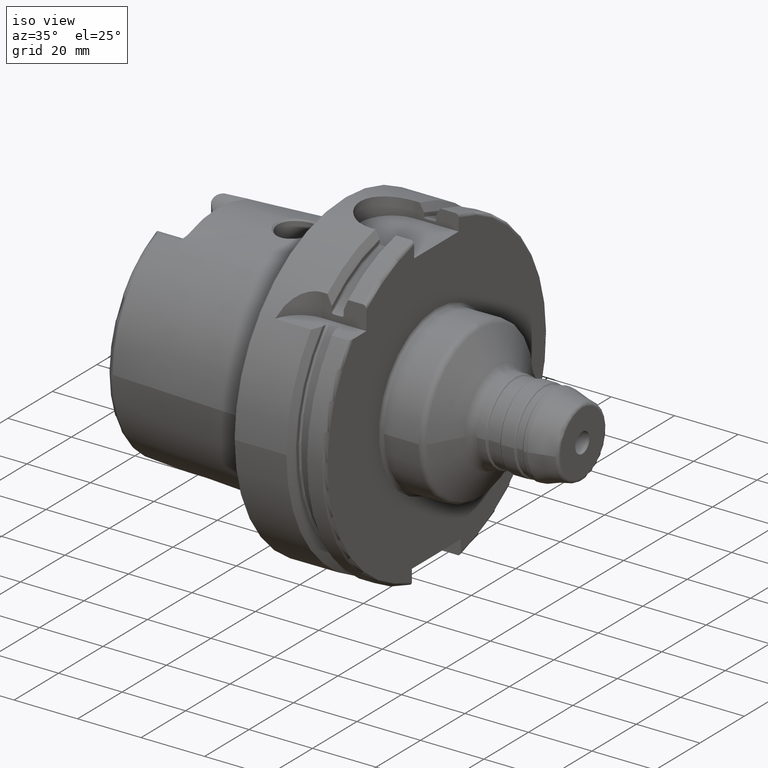
[diagram: clean part render]
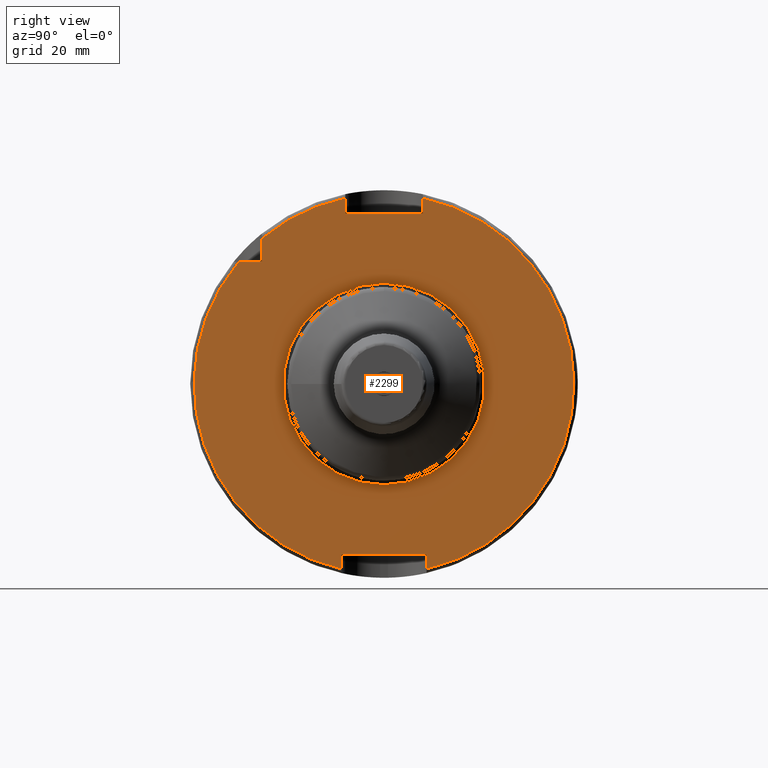
[diagram: tour spotlight — one face highlighted and labeled with its STEP entity id]
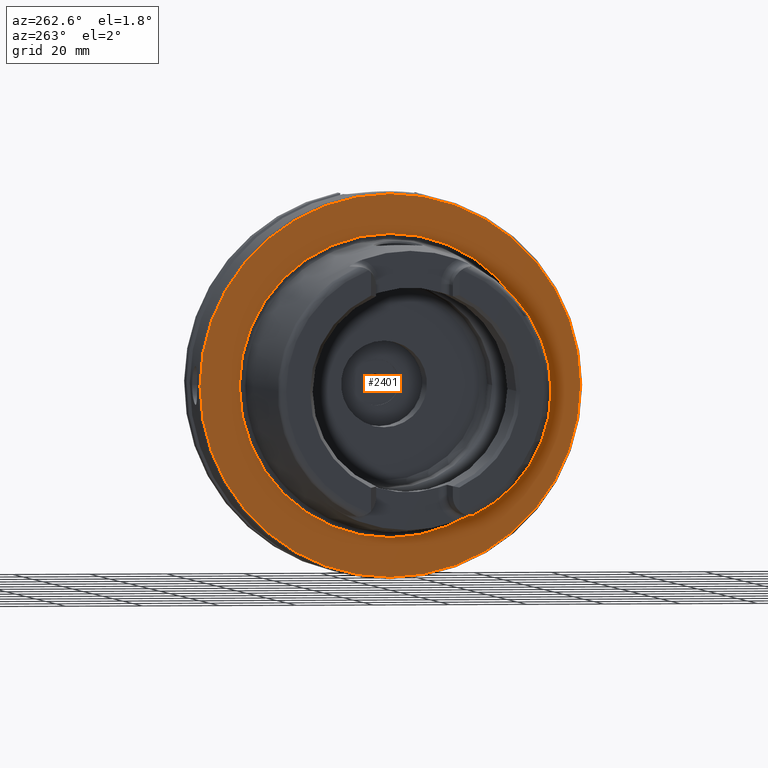
[diagram: tour spotlight — one face highlighted and labeled with its STEP entity id]
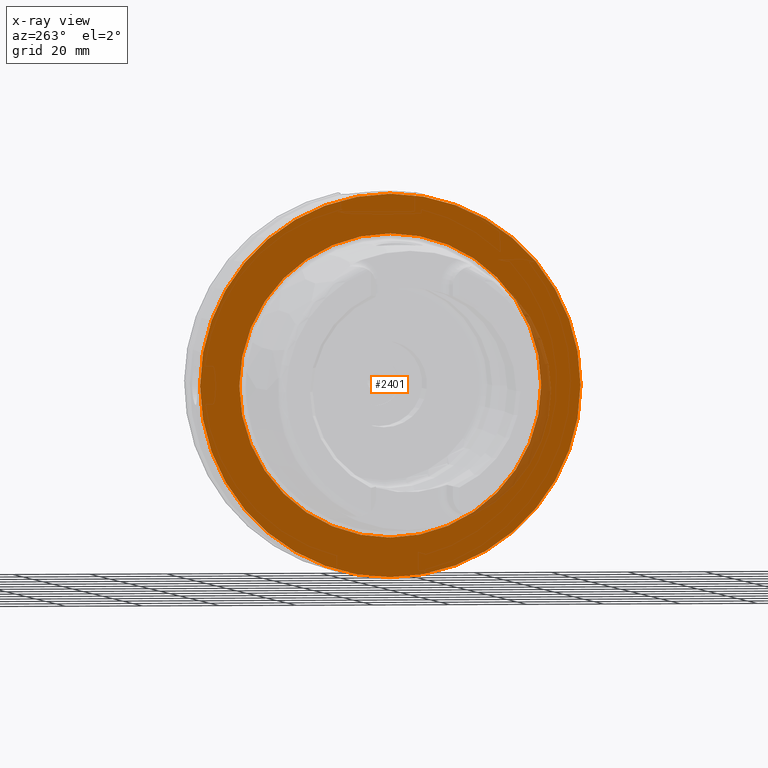
[diagram: x-ray of the same camera — body ghosted, this tour face saturated]
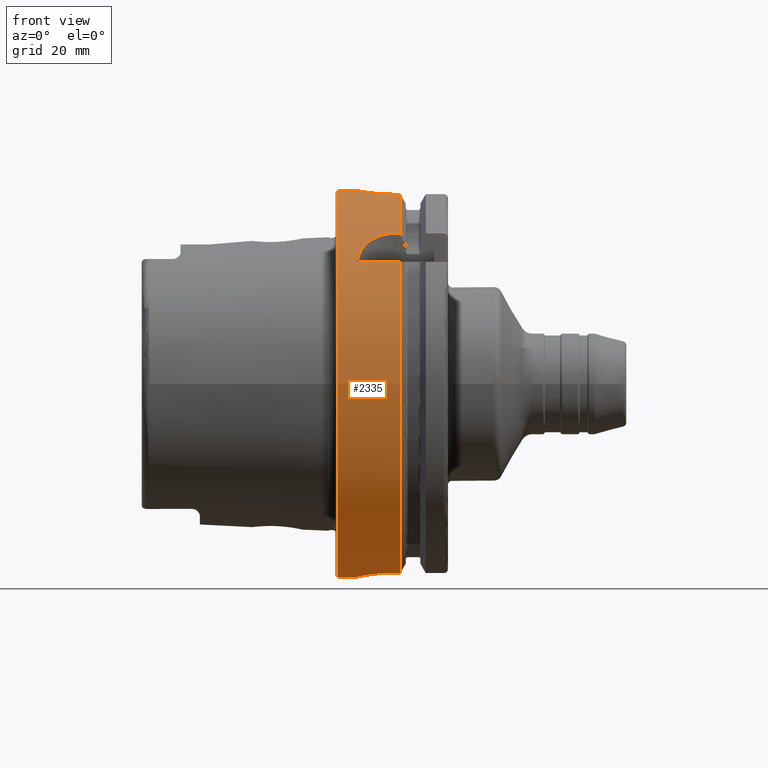
[diagram: tour spotlight — one face highlighted and labeled with its STEP entity id]
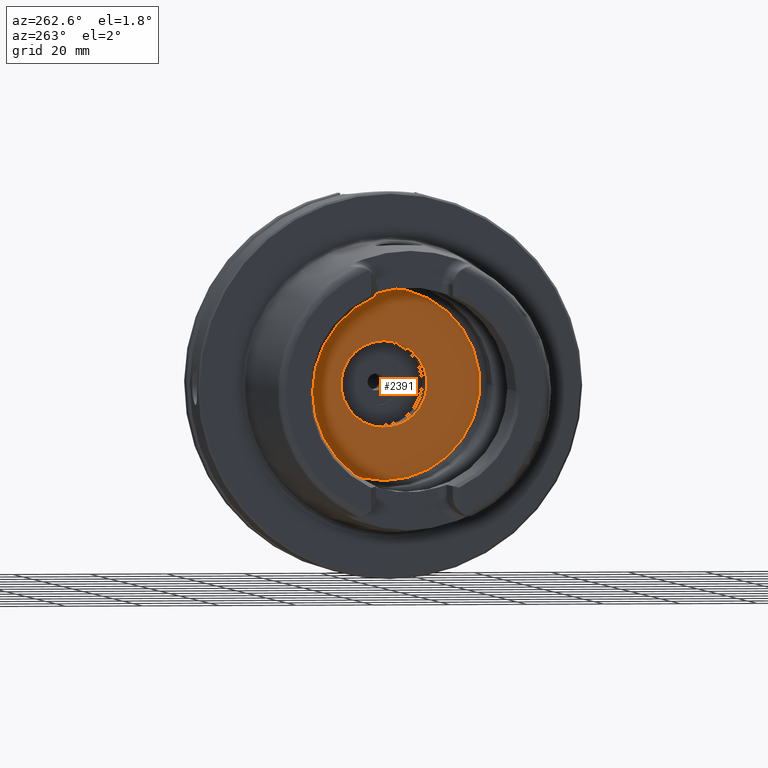
[diagram: tour spotlight — one face highlighted and labeled with its STEP entity id]
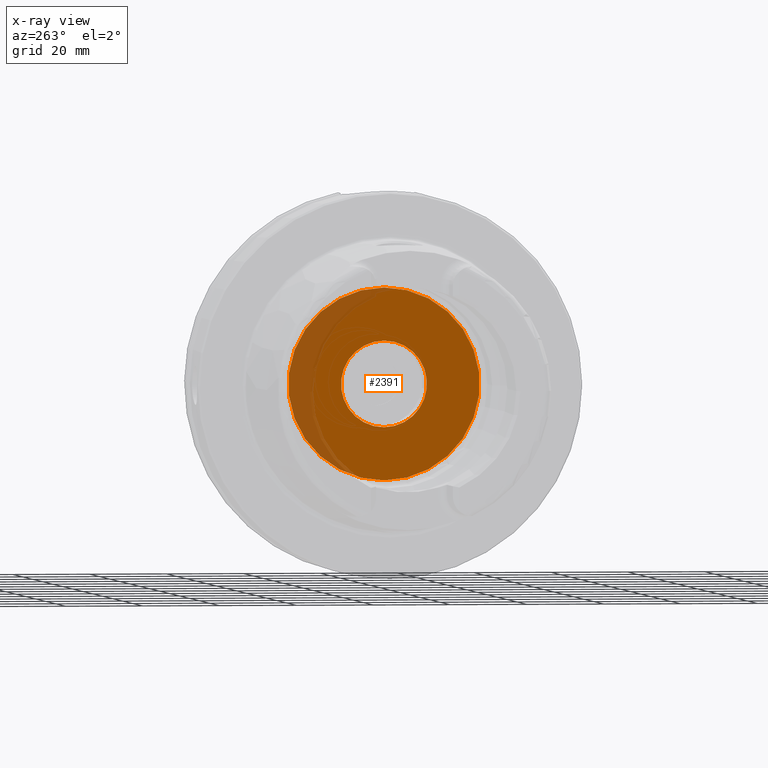
[diagram: x-ray of the same camera — body ghosted, this tour face saturated]
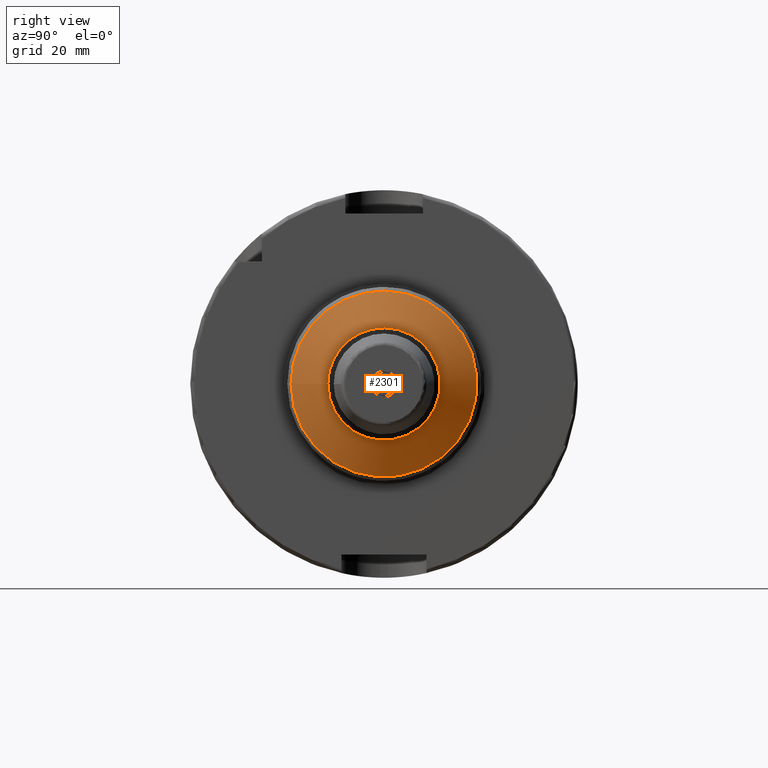
[diagram: tour spotlight — one face highlighted and labeled with its STEP entity id]
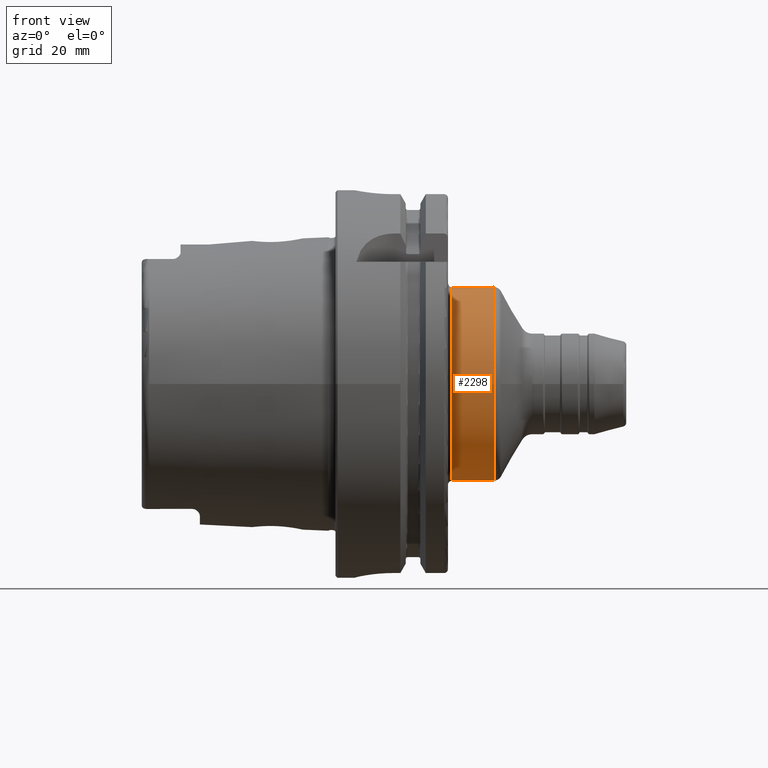
[diagram: tour spotlight — one face highlighted and labeled with its STEP entity id]
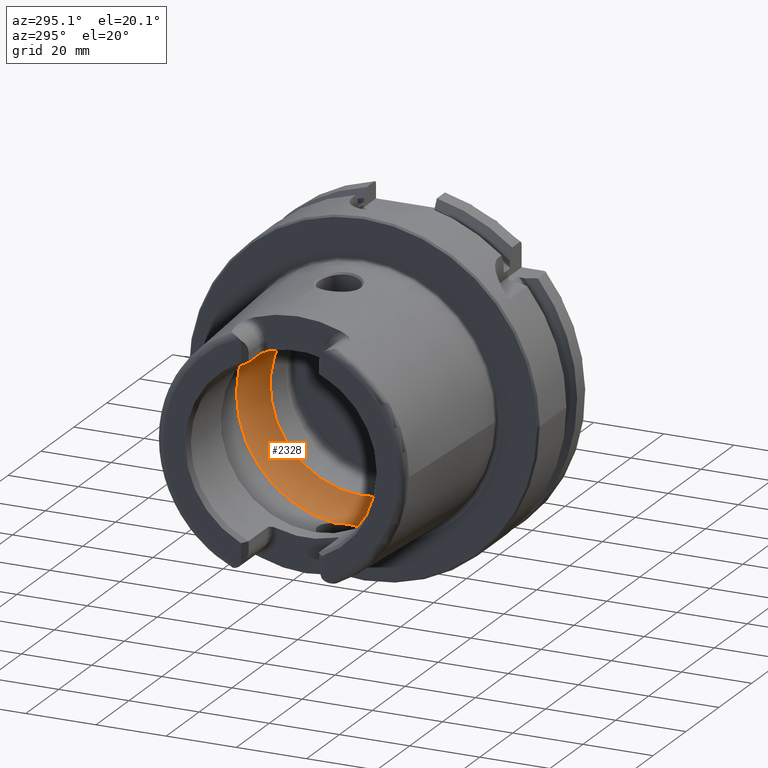
[diagram: tour spotlight — one face highlighted and labeled with its STEP entity id]
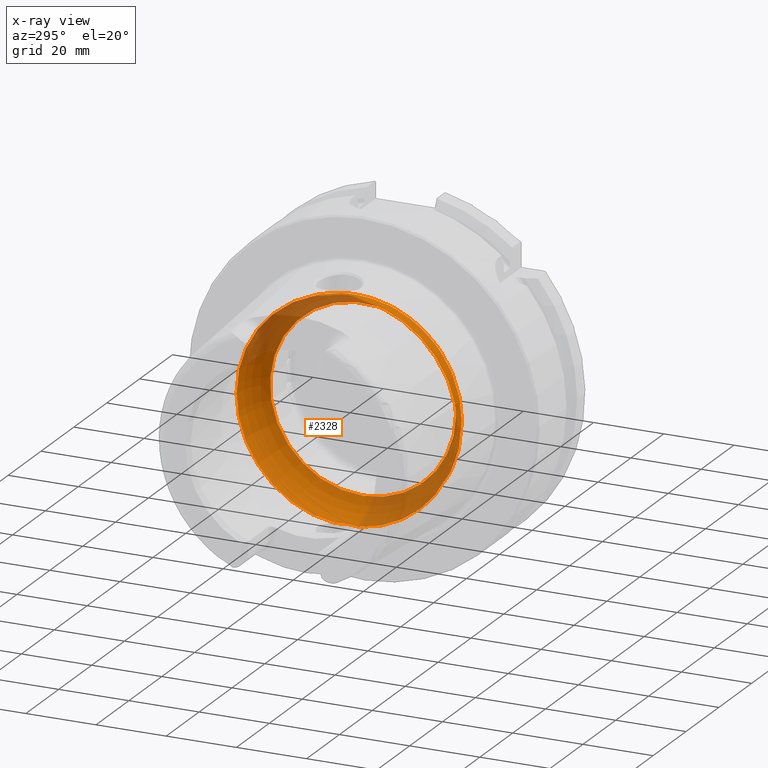
[diagram: x-ray of the same camera — body ghosted, this tour face saturated]
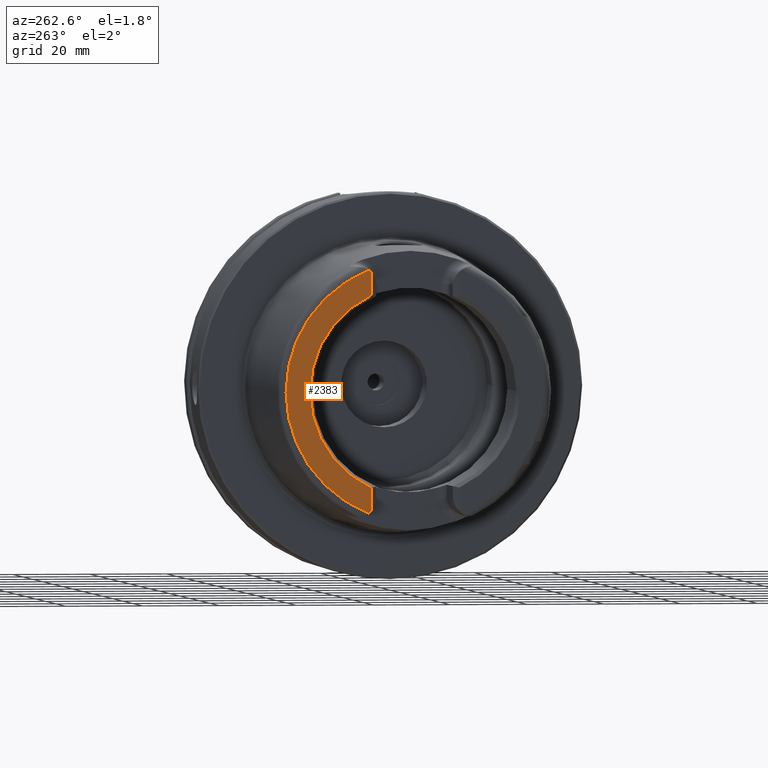
[diagram: tour spotlight — one face highlighted and labeled with its STEP entity id]
A machine part: a face-by-face anatomy tour. The part has 136 B-rep faces; the first image is the clean iso view, then the 8 largest visible faces are spotlighted one at a time (largest first), each with its STEP entity span.

Face 1 — right view, entity #2299. In plain terms, the highlighted planar face has unit normal (1, 0, 0).
Definition (entity closure, byte-faithful):
#94=FACE_BOUND('',#588,.T.);
#106=PLANE('',#2516);
#174=LINE('',#3661,#286);
#175=LINE('',#3665,#287);
#176=LINE('',#3667,#288);
#177=LINE('',#3669,#289);
#178=LINE('',#3673,#290);
#179=LINE('',#3675,#291);
#180=LINE('',#3677,#292);
#181=LINE('',#3680,#293);
#286=VECTOR('',#2935,10.);
#287=VECTOR('',#2938,10.);
#288=VECTOR('',#2939,10.);
#289=VECTOR('',#2940,10.);
#290=VECTOR('',#2943,10.);
#291=VECTOR('',#2944,10.);
#292=VECTOR('',#2945,10.);
#293=VECTOR('',#2948,10.);
#450=FACE_OUTER_BOUND('',#587,.T.);
#587=EDGE_LOOP('',(#1634,#1635,#1636,#1637,#1638,#1639,#1640,#1641,#1642,
#1643,#1644));
#588=EDGE_LOOP('',(#1645));
#765=CIRCLE('',#2511,26.);
#769=CIRCLE('',#2517,49.);
#770=CIRCLE('',#2518,49.);
#771=CIRCLE('',#2519,49.);
#936=VERTEX_POINT('',#3648);
#939=VERTEX_POINT('',#3659);
#940=VERTEX_POINT('',#3660);
#941=VERTEX_POINT('',#3662);
#942=VERTEX_POINT('',#3664);
#943=VERTEX_POINT('',#3666);
#944=VERTEX_POINT('',#3668);
#945=VERTEX_POINT('',#3670);
#946=VERTEX_POINT('',#3672);
#947=VERTEX_POINT('',#3674);
#948=VERTEX_POINT('',#3676);
#949=VERTEX_POINT('',#3678);
#1197=EDGE_CURVE('',#936,#936,#765,.T.);
#1202=EDGE_CURVE('',#939,#940,#174,.T.);
#1203=EDGE_CURVE('',#940,#941,#769,.T.);
#1204=EDGE_CURVE('',#941,#942,#175,.T.);
#1205=EDGE_CURVE('',#942,#943,#176,.T.);
#1206=EDGE_CURVE('',#943,#944,#177,.T.);
#1207=EDGE_CURVE('',#944,#945,#770,.T.);
#1208=EDGE_CURVE('',#945,#946,#178,.T.);
#1209=EDGE_CURVE('',#946,#947,#179,.T.);
#1210=EDGE_CURVE('',#947,#948,#180,.T.);
#1211=EDGE_CURVE('',#948,#949,#771,.T.);
#1212=EDGE_CURVE('',#949,#939,#181,.T.);
#1634=ORIENTED_EDGE('',*,*,#1202,.T.);
#1635=ORIENTED_EDGE('',*,*,#1203,.T.);
#1636=ORIENTED_EDGE('',*,*,#1204,.T.);
#1637=ORIENTED_EDGE('',*,*,#1205,.T.);
#1638=ORIENTED_EDGE('',*,*,#1206,.T.);
#1639=ORIENTED_EDGE('',*,*,#1207,.T.);
#1640=ORIENTED_EDGE('',*,*,#1208,.T.);
#1641=ORIENTED_EDGE('',*,*,#1209,.T.);
#1642=ORIENTED_EDGE('',*,*,#1210,.T.);
#1643=ORIENTED_EDGE('',*,*,#1211,.T.);
#1644=ORIENTED_EDGE('',*,*,#1212,.T.);
#1645=ORIENTED_EDGE('',*,*,#1197,.F.);
#2299=ADVANCED_FACE('',(#450,#94),#106,.T.);
#2511=AXIS2_PLACEMENT_3D('',#3650,#2922,#2923);
#2516=AXIS2_PLACEMENT_3D('',#3658,#2933,#2934);
#2517=AXIS2_PLACEMENT_3D('',#3663,#2936,#2937);
#2518=AXIS2_PLACEMENT_3D('',#3671,#2941,#2942);
#2519=AXIS2_PLACEMENT_3D('',#3679,#2946,#2947);
#2922=DIRECTION('center_axis',(1.,0.,0.));
#2923=DIRECTION('ref_axis',(0.,-1.,-1.22464679914735E-16));
#2933=DIRECTION('center_axis',(1.,0.,0.));
#2934=DIRECTION('ref_axis',(0.,0.,-1.));
#2935=DIRECTION('',(0.,-1.,0.));
#2936=DIRECTION('center_axis',(1.,0.,0.));
#2937=DIRECTION('ref_axis',(0.,0.,-1.));
#2938=DIRECTION('',(0.,0.,1.));
#2939=DIRECTION('',(0.,1.,0.));
#2940=DIRECTION('',(0.,0.,-1.));
#2941=DIRECTION('center_axis',(1.,0.,0.));
#2942=DIRECTION('ref_axis',(0.,0.,-1.));
#2943=DIRECTION('',(0.,0.,-1.));
#2944=DIRECTION('',(0.,-1.,0.));
#2945=DIRECTION('',(0.,0.,1.));
#2946=DIRECTION('center_axis',(1.,0.,0.));
#2947=DIRECTION('ref_axis',(0.,0.,-1.));
#2948=DIRECTION('',(0.,0.,-1.));
#3648=CARTESIAN_POINT('',(29.,-3.18408167778312E-15,-26.));
#3650=CARTESIAN_POINT('Origin',(29.,0.,0.));
#3658=CARTESIAN_POINT('Origin',(29.,0.,0.));
#3659=CARTESIAN_POINT('',(29.,-31.5,31.5));
#3660=CARTESIAN_POINT('',(29.,-37.5333185316726,31.5));
#3661=CARTESIAN_POINT('',(29.,-18.25,31.5));
#3662=CARTESIAN_POINT('',(29.,-11.,-47.7493455452533));
#3663=CARTESIAN_POINT('Origin',(29.,0.,0.));
#3664=CARTESIAN_POINT('',(29.,-11.,-44.));
#3665=CARTESIAN_POINT('',(29.,-11.,-22.));
#3666=CARTESIAN_POINT('',(29.,11.,-44.));
#3667=CARTESIAN_POINT('',(29.,-5.55111512312578E-16,-44.));
#3668=CARTESIAN_POINT('',(29.,11.,-47.7493455452533));
#3669=CARTESIAN_POINT('',(29.,11.,-22.));
#3670=CARTESIAN_POINT('',(29.,10.,47.9687398208458));
#3671=CARTESIAN_POINT('Origin',(29.,0.,0.));
#3672=CARTESIAN_POINT('',(29.,10.,44.));
#3673=CARTESIAN_POINT('',(29.,10.,22.));
#3674=CARTESIAN_POINT('',(29.,-10.,44.));
#3675=CARTESIAN_POINT('',(29.,0.,44.));
#3676=CARTESIAN_POINT('',(29.,-10.,47.9687398208458));
#3677=CARTESIAN_POINT('',(29.,-10.,22.));
#3678=CARTESIAN_POINT('',(29.,-31.5,37.5333185316726));
#3679=CARTESIAN_POINT('Origin',(29.,0.,0.));
#3680=CARTESIAN_POINT('',(29.,-31.5,15.75));

Face 2 — auxiliary view, entity #2401. An x-ray twin of the same camera follows (body ghosted, this face saturated) — the face is partly hidden behind the body. In plain terms, the highlighted planar face has unit normal (-1, 0, 0).
Definition (entity closure, byte-faithful):
#104=FACE_BOUND('',#700,.T.);
#141=PLANE('',#2739);
#552=FACE_OUTER_BOUND('',#699,.T.);
#699=EDGE_LOOP('',(#2196));
#700=EDGE_LOOP('',(#2197));
#883=CIRCLE('',#2738,39.2747800249997);
#884=CIRCLE('',#2740,49.5);
#1130=VERTEX_POINT('',#5116);
#1131=VERTEX_POINT('',#5120);
#1490=EDGE_CURVE('',#1130,#1130,#883,.T.);
#1491=EDGE_CURVE('',#1131,#1131,#884,.T.);
#2196=ORIENTED_EDGE('',*,*,#1491,.F.);
#2197=ORIENTED_EDGE('',*,*,#1490,.T.);
#2401=ADVANCED_FACE('',(#552,#104),#141,.T.);
#2738=AXIS2_PLACEMENT_3D('',#5118,#3475,#3476);
#2739=AXIS2_PLACEMENT_3D('',#5119,#3477,#3478);
#2740=AXIS2_PLACEMENT_3D('',#5121,#3479,#3480);
#3475=DIRECTION('center_axis',(1.,0.,0.));
#3476=DIRECTION('ref_axis',(0.,0.,-1.));
#3477=DIRECTION('center_axis',(-1.,0.,0.));
#3478=DIRECTION('ref_axis',(0.,0.,1.));
#3479=DIRECTION('center_axis',(1.,0.,0.));
#3480=DIRECTION('ref_axis',(0.,0.,-1.));
#5116=CARTESIAN_POINT('',(-1.11889664200504E-15,-39.2747800249997,-4.80977336448322E-15));
#5118=CARTESIAN_POINT('Origin',(0.,0.,0.));
#5119=CARTESIAN_POINT('Origin',(0.,49.5,0.));
#5120=CARTESIAN_POINT('',(1.2490009027033E-15,-49.5,-6.0620016557794E-15));
#5121=CARTESIAN_POINT('Origin',(0.,0.,0.));

Face 3 — front view, entity #2335. In plain terms, the highlighted cylindrical surface (bore or boss wall) has radius 50 mm, axis along (1, 0, 0).
Definition (entity closure, byte-faithful):
#57=B_SPLINE_CURVE_WITH_KNOTS('',3,(#4478,#4479,#4480,#4481,#4482,#4483,
#4484,#4485,#4486,#4487,#4488,#4489,#4490,#4491,#4492,#4493,#4494,#4495,
#4496,#4497,#4498,#4499,#4500,#4501,#4502,#4503),.UNSPECIFIED.,.F.,.F.,
(4,2,2,2,2,2,2,2,2,2,2,2,4),(0.,0.188478911015149,0.376957822030298,0.565436091508923,
0.753914360987547,0.942392630466172,1.1308708999448,1.31934981095995,1.50782872197509,
1.69630763299024,1.88478654400539,2.07326481348402,2.26174308296264),
 .UNSPECIFIED.);
#58=B_SPLINE_CURVE_WITH_KNOTS('',3,(#4504,#4505,#4506,#4507,#4508,#4509,
#4510,#4511,#4512,#4513),.UNSPECIFIED.,.F.,.F.,(4,2,2,2,4),(2.26174308296264,
2.45022135244127,2.63869962191989,2.82717853293504,3.01565744395019),
 .UNSPECIFIED.);
#59=B_SPLINE_CURVE_WITH_KNOTS('',3,(#4522,#4523,#4524,#4525,#4526,#4527,
#4528,#4529,#4530,#4531,#4532,#4533),.UNSPECIFIED.,.F.,.F.,(4,2,2,2,2,4),
(1.13213255574021,1.59216410027009,1.87572541272146,2.15928672517283,2.38471683342296,
2.61014694167308),.UNSPECIFIED.);
#66=B_SPLINE_CURVE_WITH_KNOTS('',3,(#4646,#4647,#4648,#4649,#4650,#4651,
#4652,#4653,#4654,#4655,#4656,#4657,#4658,#4659,#4660,#4661,#4662,#4663),
 .UNSPECIFIED.,.F.,.F.,(4,2,2,2,2,2,2,2,4),(0.,0.377795255890194,0.755590511780389,
1.13336459804459,1.51113868430879,1.88891277057299,2.26668685683718,2.64448211272738,
3.02227736861757),.UNSPECIFIED.);
#67=B_SPLINE_CURVE_WITH_KNOTS('',3,(#4671,#4672,#4673,#4674,#4675,#4676,
#4677,#4678,#4679,#4680),.UNSPECIFIED.,.F.,.F.,(4,2,2,2,4),(0.,0.377863193874929,
0.755726387749858,1.13417752669663,1.51262866564341),.UNSPECIFIED.);
#68=B_SPLINE_CURVE_WITH_KNOTS('',3,(#4684,#4685,#4686,#4687,#4688,#4689,
#4690,#4691,#4692,#4693),.UNSPECIFIED.,.F.,.F.,(4,2,2,2,4),(1.50996806152532,
1.8884192004721,2.26687033941887,2.6447335332938,3.02259672716873),
 .UNSPECIFIED.);
#100=FACE_BOUND('',#630,.T.);
#217=LINE('',#4539,#329);
#223=LINE('',#4591,#335);
#228=LINE('',#4644,#340);
#229=LINE('',#4665,#341);
#230=LINE('',#4669,#342);
#231=LINE('',#4695,#343);
#232=LINE('',#4699,#344);
#329=VECTOR('',#3148,10.);
#335=VECTOR('',#3156,10.);
#340=VECTOR('',#3165,10.);
#341=VECTOR('',#3166,10.);
#342=VECTOR('',#3169,10.);
#343=VECTOR('',#3172,10.);
#344=VECTOR('',#3175,50.);
#406=CYLINDRICAL_SURFACE('',#2603,50.);
#486=FACE_OUTER_BOUND('',#629,.T.);
#629=EDGE_LOOP('',(#1853,#1854,#1855,#1856,#1857,#1858,#1859,#1860,#1861,
#1862,#1863,#1864,#1865,#1866,#1867,#1868,#1869,#1870));
#630=EDGE_LOOP('',(#1871,#1872));
#814=CIRCLE('',#2604,50.);
#815=CIRCLE('',#2605,50.);
#816=CIRCLE('',#2606,50.);
#817=CIRCLE('',#2607,50.);
#818=CIRCLE('',#2608,50.);
#819=CIRCLE('',#2609,50.);
#1030=VERTEX_POINT('',#4475);
#1031=VERTEX_POINT('',#4477);
#1033=VERTEX_POINT('',#4520);
#1034=VERTEX_POINT('',#4521);
#1036=VERTEX_POINT('',#4538);
#1045=VERTEX_POINT('',#4590);
#1054=VERTEX_POINT('',#4641);
#1055=VERTEX_POINT('',#4643);
#1056=VERTEX_POINT('',#4645);
#1057=VERTEX_POINT('',#4664);
#1058=VERTEX_POINT('',#4666);
#1059=VERTEX_POINT('',#4668);
#1060=VERTEX_POINT('',#4670);
#1061=VERTEX_POINT('',#4681);
#1062=VERTEX_POINT('',#4683);
#1063=VERTEX_POINT('',#4694);
#1064=VERTEX_POINT('',#4696);
#1065=VERTEX_POINT('',#4698);
#1322=EDGE_CURVE('',#1031,#1030,#57,.T.);
#1323=EDGE_CURVE('',#1030,#1031,#58,.T.);
#1326=EDGE_CURVE('',#1033,#1034,#59,.T.);
#1329=EDGE_CURVE('',#1034,#1036,#217,.T.);
#1340=EDGE_CURVE('',#1045,#1033,#223,.T.);
#1350=EDGE_CURVE('',#1054,#1036,#814,.T.);
#1351=EDGE_CURVE('',#1054,#1055,#228,.T.);
#1352=EDGE_CURVE('',#1055,#1056,#66,.T.);
#1353=EDGE_CURVE('',#1056,#1057,#229,.T.);
#1354=EDGE_CURVE('',#1058,#1057,#815,.T.);
#1355=EDGE_CURVE('',#1058,#1059,#230,.T.);
#1356=EDGE_CURVE('',#1059,#1060,#67,.T.);
#1357=EDGE_CURVE('',#1060,#1061,#816,.T.);
#1358=EDGE_CURVE('',#1061,#1062,#68,.T.);
#1359=EDGE_CURVE('',#1062,#1063,#231,.T.);
#1360=EDGE_CURVE('',#1064,#1063,#817,.T.);
#1361=EDGE_CURVE('',#1064,#1065,#232,.T.);
#1362=EDGE_CURVE('',#1065,#1065,#818,.T.);
#1363=EDGE_CURVE('',#1045,#1064,#819,.T.);
#1853=ORIENTED_EDGE('',*,*,#1340,.T.);
#1854=ORIENTED_EDGE('',*,*,#1326,.T.);
#1855=ORIENTED_EDGE('',*,*,#1329,.T.);
#1856=ORIENTED_EDGE('',*,*,#1350,.F.);
#1857=ORIENTED_EDGE('',*,*,#1351,.T.);
#1858=ORIENTED_EDGE('',*,*,#1352,.T.);
#1859=ORIENTED_EDGE('',*,*,#1353,.T.);
#1860=ORIENTED_EDGE('',*,*,#1354,.F.);
#1861=ORIENTED_EDGE('',*,*,#1355,.T.);
#1862=ORIENTED_EDGE('',*,*,#1356,.T.);
#1863=ORIENTED_EDGE('',*,*,#1357,.T.);
#1864=ORIENTED_EDGE('',*,*,#1358,.T.);
#1865=ORIENTED_EDGE('',*,*,#1359,.T.);
#1866=ORIENTED_EDGE('',*,*,#1360,.F.);
#1867=ORIENTED_EDGE('',*,*,#1361,.T.);
#1868=ORIENTED_EDGE('',*,*,#1362,.T.);
#1869=ORIENTED_EDGE('',*,*,#1361,.F.);
#1870=ORIENTED_EDGE('',*,*,#1363,.F.);
#1871=ORIENTED_EDGE('',*,*,#1322,.T.);
#1872=ORIENTED_EDGE('',*,*,#1323,.T.);
#2335=ADVANCED_FACE('',(#486,#100),#406,.T.);
#2603=AXIS2_PLACEMENT_3D('',#4640,#3161,#3162);
#2604=AXIS2_PLACEMENT_3D('',#4642,#3163,#3164);
#2605=AXIS2_PLACEMENT_3D('',#4667,#3167,#3168);
#2606=AXIS2_PLACEMENT_3D('',#4682,#3170,#3171);
#2607=AXIS2_PLACEMENT_3D('',#4697,#3173,#3174);
#2608=AXIS2_PLACEMENT_3D('',#4700,#3176,#3177);
#2609=AXIS2_PLACEMENT_3D('',#4701,#3178,#3179);
#3148=DIRECTION('',(1.,0.,0.));
#3156=DIRECTION('',(-1.,0.,0.));
#3161=DIRECTION('center_axis',(1.,0.,0.));
#3162=DIRECTION('ref_axis',(0.,1.,0.));
#3163=DIRECTION('center_axis',(1.,0.,0.));
#3164=DIRECTION('ref_axis',(0.,0.,-1.));
#3165=DIRECTION('',(-1.,0.,0.));
#3166=DIRECTION('',(1.,0.,0.));
#3167=DIRECTION('center_axis',(1.,0.,0.));
#3168=DIRECTION('ref_axis',(0.,0.,-1.));
#3169=DIRECTION('',(-1.,0.,0.));
#3170=DIRECTION('center_axis',(-1.,0.,0.));
#3171=DIRECTION('ref_axis',(0.,1.,0.));
#3172=DIRECTION('',(1.,0.,0.));
#3173=DIRECTION('center_axis',(1.,0.,0.));
#3174=DIRECTION('ref_axis',(0.,0.,-1.));
#3175=DIRECTION('',(-1.,0.,0.));
#3176=DIRECTION('center_axis',(1.,0.,0.));
#3177=DIRECTION('ref_axis',(0.,0.,-1.));
#3178=DIRECTION('center_axis',(1.,0.,0.));
#3179=DIRECTION('ref_axis',(0.,0.,-1.));
#4475=CARTESIAN_POINT('',(12.,50.,-6.12323399573677E-16));
#4477=CARTESIAN_POINT('',(6.99999999999999,49.749371855331,5.));
#4478=CARTESIAN_POINT('Ctrl Pts',(6.99999999999999,49.749371855331,5.));
#4479=CARTESIAN_POINT('Ctrl Pts',(6.37173696328283,49.749371855331,5.));
#4480=CARTESIAN_POINT('Ctrl Pts',(5.70188570880885,49.7624993987098,4.87435544587055));
#4481=CARTESIAN_POINT('Ctrl Pts',(4.4701142477173,49.8098541153698,4.36395693611591));
#4482=CARTESIAN_POINT('Ctrl Pts',(3.90815809537484,49.8433908660961,3.97922590724033));
#4483=CARTESIAN_POINT('Ctrl Pts',(3.02077560297968,49.9062957431473,3.09184341484517));
#4484=CARTESIAN_POINT('Ctrl Pts',(2.63604339567929,49.9397591808605,2.52988660036719));
#4485=CARTESIAN_POINT('Ctrl Pts',(2.12564400622109,49.9869460568296,1.29811292154946));
#4486=CARTESIAN_POINT('Ctrl Pts',(1.99999999999999,50.,0.628260898262081));
#4487=CARTESIAN_POINT('Ctrl Pts',(1.99999999999999,50.,-0.628260898262082));
#4488=CARTESIAN_POINT('Ctrl Pts',(2.12564400622109,49.9869460568296,-1.29811292154947));
#4489=CARTESIAN_POINT('Ctrl Pts',(2.63604339567929,49.9397591808605,-2.52988660036719));
#4490=CARTESIAN_POINT('Ctrl Pts',(3.02077560297968,49.9062957431473,-3.09184341484517));
#4491=CARTESIAN_POINT('Ctrl Pts',(3.90815809537484,49.8433908660961,-3.97922590724033));
#4492=CARTESIAN_POINT('Ctrl Pts',(4.4701142477173,49.8098541153698,-4.36395693611591));
#4493=CARTESIAN_POINT('Ctrl Pts',(5.70188570880885,49.7624993987098,-4.87435544587055));
#4494=CARTESIAN_POINT('Ctrl Pts',(6.37173696328283,49.749371855331,-5.));
#4495=CARTESIAN_POINT('Ctrl Pts',(7.62826303671716,49.749371855331,-5.));
#4496=CARTESIAN_POINT('Ctrl Pts',(8.29811429119114,49.7624993987098,-4.87435544587055));
#4497=CARTESIAN_POINT('Ctrl Pts',(9.52988575228269,49.8098541153698,-4.36395693611592));
#4498=CARTESIAN_POINT('Ctrl Pts',(10.0918419046251,49.8433908660961,-3.97922590724033));
#4499=CARTESIAN_POINT('Ctrl Pts',(10.9792243970203,49.9062957431473,-3.09184341484517));
#4500=CARTESIAN_POINT('Ctrl Pts',(11.3639566043207,49.9397591808605,-2.52988660036719));
#4501=CARTESIAN_POINT('Ctrl Pts',(11.8743559937789,49.9869460568296,-1.29811292154946));
#4502=CARTESIAN_POINT('Ctrl Pts',(12.,50.,-0.628260898262081));
#4503=CARTESIAN_POINT('Ctrl Pts',(12.,50.,-4.16333634234434E-16));
#4504=CARTESIAN_POINT('Ctrl Pts',(12.,50.,-6.93889390390723E-16));
#4505=CARTESIAN_POINT('Ctrl Pts',(12.,50.,0.62826089826208));
#4506=CARTESIAN_POINT('Ctrl Pts',(11.8743559937789,49.9869460568296,1.29811292154946));
#4507=CARTESIAN_POINT('Ctrl Pts',(11.3639566043207,49.9397591808605,2.52988660036719));
#4508=CARTESIAN_POINT('Ctrl Pts',(10.9792243970203,49.9062957431473,3.09184341484517));
#4509=CARTESIAN_POINT('Ctrl Pts',(10.0918419046251,49.8433908660961,3.97922590724033));
#4510=CARTESIAN_POINT('Ctrl Pts',(9.5298857522827,49.8098541153698,4.36395693611591));
#4511=CARTESIAN_POINT('Ctrl Pts',(8.29811429119114,49.7624993987098,4.87435544587055));
#4512=CARTESIAN_POINT('Ctrl Pts',(7.62826303671716,49.749371855331,5.));
#4513=CARTESIAN_POINT('Ctrl Pts',(6.99999999999999,49.749371855331,5.));
#4520=CARTESIAN_POINT('',(5.36310214079494,-38.8297566307078,31.5));
#4521=CARTESIAN_POINT('',(15.,-31.5,38.8297566307078));
#4522=CARTESIAN_POINT('Ctrl Pts',(5.36310214079494,-38.8297566307078,31.5));
#4523=CARTESIAN_POINT('Ctrl Pts',(5.63795050776221,-37.8378299510303,32.722738779917));
#4524=CARTESIAN_POINT('Ctrl Pts',(6.08245260240086,-36.8264130955983,33.8486741193789));
#4525=CARTESIAN_POINT('Ctrl Pts',(7.14730321206235,-35.2667182945212,35.4540138707062));
#4526=CARTESIAN_POINT('Ctrl Pts',(7.68113760815893,-34.6306580359392,36.0741351437033));
#4527=CARTESIAN_POINT('Ctrl Pts',(8.97436758466638,-33.4722127660808,37.1515365058173));
#4528=CARTESIAN_POINT('Ctrl Pts',(9.73574998094174,-32.9521170857844,37.6088911783762));
#4529=CARTESIAN_POINT('Ctrl Pts',(11.1521999725134,-32.2432973482077,38.2170233500259));
#4530=CARTESIAN_POINT('Ctrl Pts',(11.8888981504148,-31.9629772872452,38.4503075998006));
#4531=CARTESIAN_POINT('Ctrl Pts',(13.4369856471743,-31.5908755949743,38.7566077888176));
#4532=CARTESIAN_POINT('Ctrl Pts',(14.2485663058329,-31.5,38.8297566307078));
#4533=CARTESIAN_POINT('Ctrl Pts',(15.,-31.5,38.8297566307078));
#4538=CARTESIAN_POINT('',(16.7379709790786,-31.5,38.8297566307078));
#4539=CARTESIAN_POINT('',(8.61898548953931,-31.5,38.8297566307078));
#4590=CARTESIAN_POINT('',(16.7379709790786,-38.8297566307078,31.5));
#4591=CARTESIAN_POINT('',(8.61898548953931,-38.8297566307078,31.5));
#4640=CARTESIAN_POINT('Origin',(8.61898548953931,0.,0.));
#4641=CARTESIAN_POINT('',(16.7379709790786,-10.,48.9897948556636));
#4642=CARTESIAN_POINT('Origin',(16.7379709790786,0.,0.));
#4643=CARTESIAN_POINT('',(15.,-10.,48.9897948556636));
#4644=CARTESIAN_POINT('',(8.61898548953931,-10.,48.9897948556636));
#4645=CARTESIAN_POINT('',(15.,10.,48.9897948556636));
#4646=CARTESIAN_POINT('Ctrl Pts',(15.,-10.,48.9897948556636));
#4647=CARTESIAN_POINT('Ctrl Pts',(13.740682480366,-10.,48.9897948556636));
#4648=CARTESIAN_POINT('Ctrl Pts',(12.3998222283811,-9.74762796248614,49.0433876618447));
#4649=CARTESIAN_POINT('Ctrl Pts',(9.93707994969945,-8.72605417648382,49.2354150792771));
#4650=CARTESIAN_POINT('Ctrl Pts',(8.81489539818993,-7.95703102192089,49.3709085101933));
#4651=CARTESIAN_POINT('Ctrl Pts',(7.04301862271998,-6.18515424645094,49.6240337638318));
#4652=CARTESIAN_POINT('Ctrl Pts',(6.27395658455242,-5.06294861197626,49.7583347151863));
#4653=CARTESIAN_POINT('Ctrl Pts',(5.25235457764165,-2.60013306081865,49.9476188647081));
#4654=CARTESIAN_POINT('Ctrl Pts',(4.99999999999999,-1.259246954214,50.));
#4655=CARTESIAN_POINT('Ctrl Pts',(4.99999999999999,1.259246954214,50.));
#4656=CARTESIAN_POINT('Ctrl Pts',(5.25235457764165,2.60013306081865,49.9476188647081));
#4657=CARTESIAN_POINT('Ctrl Pts',(6.27395658455242,5.06294861197626,49.7583347151863));
#4658=CARTESIAN_POINT('Ctrl Pts',(7.04301862271998,6.18515424645094,49.6240337638318));
#4659=CARTESIAN_POINT('Ctrl Pts',(8.81489539818993,7.95703102192089,49.3709085101933));
#4660=CARTESIAN_POINT('Ctrl Pts',(9.93707994969945,8.72605417648382,49.2354150792771));
#4661=CARTESIAN_POINT('Ctrl Pts',(12.3998222283811,9.74762796248614,49.0433876618447));
#4662=CARTESIAN_POINT('Ctrl Pts',(13.740682480366,10.,48.9897948556636));
#4663=CARTESIAN_POINT('Ctrl Pts',(15.,10.,48.9897948556636));
#4664=CARTESIAN_POINT('',(16.7379709790786,10.,48.9897948556636));
#4665=CARTESIAN_POINT('',(8.61898548953931,10.,48.9897948556636));
#4666=CARTESIAN_POINT('',(16.7379709790786,11.,-48.7749935930288));
#4667=CARTESIAN_POINT('Origin',(16.7379709790786,0.,0.));
#4668=CARTESIAN_POINT('',(15.,11.,-48.7749935930288));
#4669=CARTESIAN_POINT('',(8.61898548953931,11.,-48.7749935930288));
#4670=CARTESIAN_POINT('',(4.99999999999999,0.999999999999997,-49.9899989998));
#4671=CARTESIAN_POINT('Ctrl Pts',(15.,11.,-48.7749935930288));
#4672=CARTESIAN_POINT('Ctrl Pts',(13.7404560204169,11.,-48.7749935930288));
#4673=CARTESIAN_POINT('Ctrl Pts',(12.3998213084084,10.7475295248871,-48.8340306344483));
#4674=CARTESIAN_POINT('Ctrl Pts',(9.9383361278342,9.72667325975831,-49.0475663096823));
#4675=CARTESIAN_POINT('Ctrl Pts',(8.81713821454868,8.95850056252305,-49.1990678796225));
#4676=CARTESIAN_POINT('Ctrl Pts',(7.04551978193545,7.18842719108522,-49.4887060645896));
#4677=CARTESIAN_POINT('Ctrl Pts',(6.27594389465425,6.06650925178,-49.6460359942126));
#4678=CARTESIAN_POINT('Ctrl Pts',(5.25307325920197,3.60309260864685,-49.8853600567865));
#4679=CARTESIAN_POINT('Ctrl Pts',(4.99999999999999,2.26125147049483,-49.9647689238702));
#4680=CARTESIAN_POINT('Ctrl Pts',(4.99999999999999,1.,-49.9899989998));
#4681=CARTESIAN_POINT('',(4.99999999999999,-1.00000000000001,-49.9899989998));
#4682=CARTESIAN_POINT('Origin',(4.99999999999999,0.,0.));
#4683=CARTESIAN_POINT('',(15.,-11.,-48.7749935930288));
#4684=CARTESIAN_POINT('Ctrl Pts',(4.99999999999999,-1.,-49.9899989998));
#4685=CARTESIAN_POINT('Ctrl Pts',(4.99999999999999,-2.26125147049483,-49.9647689238702));
#4686=CARTESIAN_POINT('Ctrl Pts',(5.25307325920197,-3.60309260864686,-49.8853600567865));
#4687=CARTESIAN_POINT('Ctrl Pts',(6.27594389465425,-6.06650925178001,-49.6460359942126));
#4688=CARTESIAN_POINT('Ctrl Pts',(7.04551978193545,-7.18842719108522,-49.4887060645896));
#4689=CARTESIAN_POINT('Ctrl Pts',(8.81713821454868,-8.95850056252306,-49.1990678796225));
#4690=CARTESIAN_POINT('Ctrl Pts',(9.9383361278342,-9.72667325975831,-49.0475663096823));
#4691=CARTESIAN_POINT('Ctrl Pts',(12.3998213084084,-10.7475295248871,-48.8340306344483));
#4692=CARTESIAN_POINT('Ctrl Pts',(13.7404560204169,-11.,-48.7749935930288));
#4693=CARTESIAN_POINT('Ctrl Pts',(15.,-11.,-48.7749935930288));
#4694=CARTESIAN_POINT('',(16.7379709790786,-11.,-48.7749935930288));
#4695=CARTESIAN_POINT('',(8.61898548953931,-11.,-48.7749935930288));
#4696=CARTESIAN_POINT('',(16.7379709790786,-50.,-6.12323399573677E-15));
#4697=CARTESIAN_POINT('Origin',(16.7379709790786,0.,0.));
#4698=CARTESIAN_POINT('',(0.499999999999999,-50.,-6.12323399573677E-15));
#4699=CARTESIAN_POINT('',(8.61898548953931,-50.,-6.12323399573677E-15));
#4700=CARTESIAN_POINT('Origin',(0.5,0.,0.));
#4701=CARTESIAN_POINT('Origin',(16.7379709790786,0.,0.));

Face 4 — auxiliary view, entity #2391. An x-ray twin of the same camera follows (body ghosted, this face saturated) — the face is partly hidden behind the body. In plain terms, the highlighted planar face has unit normal (1, 0, 0).
Definition (entity closure, byte-faithful):
#102=FACE_BOUND('',#688,.T.);
#139=PLANE('',#2712);
#542=FACE_OUTER_BOUND('',#687,.T.);
#687=EDGE_LOOP('',(#2148));
#688=EDGE_LOOP('',(#2149));
#864=CIRCLE('',#2708,11.188101);
#867=CIRCLE('',#2713,24.9);
#1115=VERTEX_POINT('',#5067);
#1118=VERTEX_POINT('',#5076);
#1466=EDGE_CURVE('',#1115,#1115,#864,.T.);
#1470=EDGE_CURVE('',#1118,#1118,#867,.T.);
#2148=ORIENTED_EDGE('',*,*,#1470,.T.);
#2149=ORIENTED_EDGE('',*,*,#1466,.T.);
#2391=ADVANCED_FACE('',(#542,#102),#139,.F.);
#2708=AXIS2_PLACEMENT_3D('',#5068,#3410,#3411);
#2712=AXIS2_PLACEMENT_3D('',#5075,#3419,#3420);
#2713=AXIS2_PLACEMENT_3D('',#5077,#3421,#3422);
#3410=DIRECTION('center_axis',(1.,0.,0.));
#3411=DIRECTION('ref_axis',(0.,0.,1.));
#3419=DIRECTION('center_axis',(1.,0.,0.));
#3420=DIRECTION('ref_axis',(0.,0.,-1.));
#3421=DIRECTION('center_axis',(-1.,0.,0.));
#3422=DIRECTION('ref_axis',(0.,0.,1.));
#5067=CARTESIAN_POINT('',(12.5,-1.37014720781873E-15,-11.188101));
#5068=CARTESIAN_POINT('Origin',(12.5,0.,0.));
#5075=CARTESIAN_POINT('Origin',(12.5,24.9,0.));
#5076=CARTESIAN_POINT('',(12.5,-3.04937052987691E-15,-24.9));
#5077=CARTESIAN_POINT('Origin',(12.5,0.,0.));

Face 5 — right view, entity #2301. In plain terms, the highlighted conical surface has half-angle 60 deg.
Definition (entity closure, byte-faithful):
#149=CONICAL_SURFACE('',#2524,19.,1.0471975511966);
#182=LINE('',#3691,#294);
#294=VECTOR('',#2961,19.);
#452=FACE_OUTER_BOUND('',#590,.T.);
#590=EDGE_LOOP('',(#1652,#1653,#1654,#1655,#1656,#1657));
#772=CIRCLE('',#2521,24.);
#773=CIRCLE('',#2522,24.);
#775=CIRCLE('',#2525,14.5);
#776=CIRCLE('',#2526,14.5);
#950=VERTEX_POINT('',#3682);
#951=VERTEX_POINT('',#3683);
#952=VERTEX_POINT('',#3688);
#953=VERTEX_POINT('',#3689);
#1213=EDGE_CURVE('',#950,#951,#772,.T.);
#1214=EDGE_CURVE('',#951,#950,#773,.T.);
#1216=EDGE_CURVE('',#952,#953,#775,.T.);
#1217=EDGE_CURVE('',#952,#951,#182,.T.);
#1218=EDGE_CURVE('',#953,#952,#776,.T.);
#1652=ORIENTED_EDGE('',*,*,#1216,.F.);
#1653=ORIENTED_EDGE('',*,*,#1217,.T.);
#1654=ORIENTED_EDGE('',*,*,#1213,.F.);
#1655=ORIENTED_EDGE('',*,*,#1214,.F.);
#1656=ORIENTED_EDGE('',*,*,#1217,.F.);
#1657=ORIENTED_EDGE('',*,*,#1218,.F.);
#2301=ADVANCED_FACE('',(#452),#149,.T.);
#2521=AXIS2_PLACEMENT_3D('',#3684,#2951,#2952);
#2522=AXIS2_PLACEMENT_3D('',#3685,#2953,#2954);
#2524=AXIS2_PLACEMENT_3D('',#3687,#2957,#2958);
#2525=AXIS2_PLACEMENT_3D('',#3690,#2959,#2960);
#2526=AXIS2_PLACEMENT_3D('',#3692,#2962,#2963);
#2951=DIRECTION('center_axis',(-1.,0.,0.));
#2952=DIRECTION('ref_axis',(0.,-1.,3.06161699786838E-17));
#2953=DIRECTION('center_axis',(-1.,0.,0.));
#2954=DIRECTION('ref_axis',(0.,-1.,3.06161699786838E-17));
#2957=DIRECTION('center_axis',(-1.,0.,0.));
#2958=DIRECTION('ref_axis',(0.,1.,0.));
#2959=DIRECTION('center_axis',(1.,0.,0.));
#2960=DIRECTION('ref_axis',(0.,-1.,3.06161699786838E-17));
#2961=DIRECTION('',(-0.5,-0.866025403784438,-1.06057523872491E-16));
#2962=DIRECTION('center_axis',(1.,0.,0.));
#2963=DIRECTION('ref_axis',(0.,-1.,3.06161699786838E-17));
#3682=CARTESIAN_POINT('',(42.6491470389141,-2.93915231795365E-15,24.));
#3683=CARTESIAN_POINT('',(42.6491470389141,-24.,-2.93915231795365E-15));
#3684=CARTESIAN_POINT('Origin',(42.6491470389141,0.,-3.67394039744206E-15));
#3685=CARTESIAN_POINT('Origin',(42.6491470389141,0.,-3.67394039744206E-15));
#3687=CARTESIAN_POINT('Origin',(45.5358983848623,0.,0.));
#3688=CARTESIAN_POINT('',(48.1339745962156,-14.5,-1.77573785876366E-15));
#3689=CARTESIAN_POINT('',(48.1339745962156,-1.77573785876366E-15,14.5));
#3690=CARTESIAN_POINT('Origin',(48.1339745962156,0.,-2.21967232345458E-15));
#3691=CARTESIAN_POINT('',(45.5358983848623,-19.,-2.32682891837997E-15));
#3692=CARTESIAN_POINT('Origin',(48.1339745962156,0.,-2.21967232345458E-15));

Face 6 — front view, entity #2298. In plain terms, the highlighted cylindrical surface (bore or boss wall) has radius 25 mm, axis along (1, 0, 0).
Definition (entity closure, byte-faithful):
#173=LINE('',#3656,#285);
#285=VECTOR('',#2930,25.);
#392=CYLINDRICAL_SURFACE('',#2513,25.);
#449=FACE_OUTER_BOUND('',#586,.T.);
#586=EDGE_LOOP('',(#1628,#1629,#1630,#1631,#1632,#1633));
#763=CIRCLE('',#2509,25.);
#766=CIRCLE('',#2512,25.);
#767=CIRCLE('',#2514,25.);
#768=CIRCLE('',#2515,25.);
#934=VERTEX_POINT('',#3645);
#935=VERTEX_POINT('',#3646);
#937=VERTEX_POINT('',#3653);
#938=VERTEX_POINT('',#3654);
#1195=EDGE_CURVE('',#934,#935,#763,.T.);
#1198=EDGE_CURVE('',#935,#934,#766,.T.);
#1199=EDGE_CURVE('',#937,#938,#767,.T.);
#1200=EDGE_CURVE('',#937,#934,#173,.T.);
#1201=EDGE_CURVE('',#938,#937,#768,.T.);
#1628=ORIENTED_EDGE('',*,*,#1199,.F.);
#1629=ORIENTED_EDGE('',*,*,#1200,.T.);
#1630=ORIENTED_EDGE('',*,*,#1198,.F.);
#1631=ORIENTED_EDGE('',*,*,#1195,.F.);
#1632=ORIENTED_EDGE('',*,*,#1200,.F.);
#1633=ORIENTED_EDGE('',*,*,#1201,.F.);
#2298=ADVANCED_FACE('',(#449),#392,.T.);
#2509=AXIS2_PLACEMENT_3D('',#3647,#2918,#2919);
#2512=AXIS2_PLACEMENT_3D('',#3651,#2924,#2925);
#2513=AXIS2_PLACEMENT_3D('',#3652,#2926,#2927);
#2514=AXIS2_PLACEMENT_3D('',#3655,#2928,#2929);
#2515=AXIS2_PLACEMENT_3D('',#3657,#2931,#2932);
#2918=DIRECTION('center_axis',(-1.,0.,0.));
#2919=DIRECTION('ref_axis',(0.,-1.,-1.22464679914735E-16));
#2924=DIRECTION('center_axis',(-1.,0.,0.));
#2925=DIRECTION('ref_axis',(0.,-1.,-1.22464679914735E-16));
#2926=DIRECTION('center_axis',(1.,0.,0.));
#2927=DIRECTION('ref_axis',(0.,1.,0.));
#2928=DIRECTION('center_axis',(1.,0.,0.));
#2929=DIRECTION('ref_axis',(0.,-1.,1.83697019872103E-16));
#2930=DIRECTION('',(-1.,0.,0.));
#2931=DIRECTION('center_axis',(1.,0.,0.));
#2932=DIRECTION('ref_axis',(0.,-1.,1.83697019872103E-16));
#3645=CARTESIAN_POINT('',(30.,-25.,-3.06161699786838E-15));
#3646=CARTESIAN_POINT('',(30.,-3.06161699786838E-15,-25.));
#3647=CARTESIAN_POINT('Origin',(30.,0.,0.));
#3651=CARTESIAN_POINT('Origin',(30.,0.,0.));
#3652=CARTESIAN_POINT('Origin',(35.5358983848622,0.,0.));
#3653=CARTESIAN_POINT('',(40.9170962313453,-25.,-3.06161699786838E-15));
#3654=CARTESIAN_POINT('',(40.9170962313453,-3.06161699786838E-15,25.));
#3655=CARTESIAN_POINT('Origin',(40.9170962313453,0.,0.));
#3656=CARTESIAN_POINT('',(35.5358983848622,-25.,-3.06161699786838E-15));
#3657=CARTESIAN_POINT('Origin',(40.9170962313453,0.,0.));

Face 7 — auxiliary view, entity #2328. An x-ray twin of the same camera follows (body ghosted, this face saturated) — the face is partly hidden behind the body. In plain terms, the highlighted toroidal blend (fillet) surface has major radius 19.5 mm and minor (blend) radius 12 mm.
Definition (entity closure, byte-faithful):
#49=B_SPLINE_CURVE_WITH_KNOTS('',3,(#4209,#4210,#4211,#4212,#4213,#4214,
#4215,#4216,#4217,#4218),.UNSPECIFIED.,.F.,.F.,(4,2,2,2,4),(-0.704306975532235,
-0.563368317577754,-0.446049375641081,-0.386534165165624,-0.352317223799877),
 .UNSPECIFIED.);
#51=B_SPLINE_CURVE_WITH_KNOTS('',3,(#4251,#4252,#4253,#4254,#4255,#4256,
#4257,#4258,#4259,#4260),.UNSPECIFIED.,.F.,.F.,(4,2,2,2,4),(-0.352317223799877,
-0.339935606805379,-0.289031750490702,-0.208814277120691,0.),
 .UNSPECIFIED.);
#54=B_SPLINE_CURVE_WITH_KNOTS('',3,(#4401,#4402,#4403,#4404,#4405,#4406,
#4407,#4408,#4409,#4410),.UNSPECIFIED.,.F.,.F.,(4,2,2,2,4),(-0.704306975532881,
-0.563368317578124,-0.446049375641235,-0.386534165165663,-0.352317223799864),
 .UNSPECIFIED.);
#56=B_SPLINE_CURVE_WITH_KNOTS('',3,(#4443,#4444,#4445,#4446,#4447,#4448,
#4449,#4450,#4451,#4452),.UNSPECIFIED.,.F.,.F.,(4,2,2,2,4),(-0.352317223799864,
-0.339935606805357,-0.289031750490679,-0.208814277120681,0.),
 .UNSPECIFIED.);
#479=FACE_OUTER_BOUND('',#622,.T.);
#622=EDGE_LOOP('',(#1801,#1802,#1803,#1804,#1805,#1806,#1807,#1808,#1809,
#1810,#1811));
#801=CIRCLE('',#2583,31.5);
#804=CIRCLE('',#2586,31.5);
#805=CIRCLE('',#2587,31.5);
#806=CIRCLE('',#2589,26.5);
#807=CIRCLE('',#2590,26.5);
#808=CIRCLE('',#2591,12.);
#1015=VERTEX_POINT('',#4206);
#1016=VERTEX_POINT('',#4208);
#1017=VERTEX_POINT('',#4219);
#1020=VERTEX_POINT('',#4399);
#1021=VERTEX_POINT('',#4400);
#1022=VERTEX_POINT('',#4411);
#1023=VERTEX_POINT('',#4455);
#1026=VERTEX_POINT('',#4465);
#1027=VERTEX_POINT('',#4466);
#1300=EDGE_CURVE('',#1016,#1015,#49,.T.);
#1302=EDGE_CURVE('',#1015,#1017,#51,.T.);
#1306=EDGE_CURVE('',#1020,#1021,#54,.T.);
#1308=EDGE_CURVE('',#1021,#1022,#56,.T.);
#1310=EDGE_CURVE('',#1023,#1020,#801,.T.);
#1314=EDGE_CURVE('',#1017,#1023,#804,.T.);
#1315=EDGE_CURVE('',#1022,#1016,#805,.T.);
#1316=EDGE_CURVE('',#1026,#1027,#806,.T.);
#1317=EDGE_CURVE('',#1027,#1026,#807,.T.);
#1318=EDGE_CURVE('',#1027,#1015,#808,.T.);
#1801=ORIENTED_EDGE('',*,*,#1316,.F.);
#1802=ORIENTED_EDGE('',*,*,#1317,.F.);
#1803=ORIENTED_EDGE('',*,*,#1318,.T.);
#1804=ORIENTED_EDGE('',*,*,#1302,.T.);
#1805=ORIENTED_EDGE('',*,*,#1314,.T.);
#1806=ORIENTED_EDGE('',*,*,#1310,.T.);
#1807=ORIENTED_EDGE('',*,*,#1306,.T.);
#1808=ORIENTED_EDGE('',*,*,#1308,.T.);
#1809=ORIENTED_EDGE('',*,*,#1315,.T.);
#1810=ORIENTED_EDGE('',*,*,#1300,.T.);
#1811=ORIENTED_EDGE('',*,*,#1318,.F.);
#2253=TOROIDAL_SURFACE('',#2588,19.5,12.);
#2328=ADVANCED_FACE('',(#479),#2253,.F.);
#2583=AXIS2_PLACEMENT_3D('',#4456,#3107,#3108);
#2586=AXIS2_PLACEMENT_3D('',#4462,#3114,#3115);
#2587=AXIS2_PLACEMENT_3D('',#4463,#3116,#3117);
#2588=AXIS2_PLACEMENT_3D('',#4464,#3118,#3119);
#2589=AXIS2_PLACEMENT_3D('',#4467,#3120,#3121);
#2590=AXIS2_PLACEMENT_3D('',#4468,#3122,#3123);
#2591=AXIS2_PLACEMENT_3D('',#4469,#3124,#3125);
#3107=DIRECTION('center_axis',(-1.,0.,0.));
#3108=DIRECTION('ref_axis',(0.,0.,1.));
#3114=DIRECTION('center_axis',(-1.,0.,0.));
#3115=DIRECTION('ref_axis',(0.,0.,1.));
#3116=DIRECTION('center_axis',(-1.,0.,0.));
#3117=DIRECTION('ref_axis',(0.,0.,1.));
#3118=DIRECTION('center_axis',(-1.,0.,0.));
#3119=DIRECTION('ref_axis',(0.,0.,1.));
#3120=DIRECTION('center_axis',(-1.,0.,0.));
#3121=DIRECTION('ref_axis',(0.,0.,1.));
#3122=DIRECTION('center_axis',(-1.,0.,0.));
#3123=DIRECTION('ref_axis',(0.,0.,1.));
#3124=DIRECTION('center_axis',(0.,1.,-1.22464679914735E-16));
#3125=DIRECTION('ref_axis',(0.,-1.22464679914735E-16,-1.));
#4206=CARTESIAN_POINT('',(-9.,7.31685969699336E-16,-31.4582607431014));
#4208=CARTESIAN_POINT('',(-10.,3.31662479035542,-31.3249102153542));
#4209=CARTESIAN_POINT('Ctrl Pts',(-10.,3.31662479035541,-31.3249102153542));
#4210=CARTESIAN_POINT('Ctrl Pts',(-9.74127936765642,2.9265887617158,-31.3662065240371));
#4211=CARTESIAN_POINT('Ctrl Pts',(-9.52862762836098,2.50688318043554,-31.3949925235713));
#4212=CARTESIAN_POINT('Ctrl Pts',(-9.23240476385999,1.69927856892452,-31.4324255053116));
#4213=CARTESIAN_POINT('Ctrl Pts',(-9.13392344910017,1.31988974241601,-31.4435429781858));
#4214=CARTESIAN_POINT('Ctrl Pts',(-9.04220079429722,0.737558982965052,-31.4537190708018));
#4215=CARTESIAN_POINT('Ctrl Pts',(-9.02106779489129,0.540134132990375,-31.4559959808551));
#4216=CARTESIAN_POINT('Ctrl Pts',(-9.00325309475839,0.228126507331767,-31.4579131546092));
#4217=CARTESIAN_POINT('Ctrl Pts',(-9.,0.114070256385601,-31.4582607431014));
#4218=CARTESIAN_POINT('Ctrl Pts',(-9.,6.93889390390723E-16,-31.4582607431014));
#4219=CARTESIAN_POINT('',(-10.,-3.31662479035542,-31.3249102153542));
#4251=CARTESIAN_POINT('Ctrl Pts',(-9.,7.01335490450834E-16,-31.4582607431014));
#4252=CARTESIAN_POINT('Ctrl Pts',(-9.,-0.0412770448981316,-31.4582607431014));
#4253=CARTESIAN_POINT('Ctrl Pts',(-9.0004259501075,-0.0825559236689198,
-31.4582151361457));
#4254=CARTESIAN_POINT('Ctrl Pts',(-9.00478075477959,-0.293516919658797,
-31.4577484235034));
#4255=CARTESIAN_POINT('Ctrl Pts',(-9.01548241237086,-0.462981091842713,
-31.4566045938877));
#4256=CARTESIAN_POINT('Ctrl Pts',(-9.06151123201634,-0.897706518793593,
-31.4515940123075));
#4257=CARTESIAN_POINT('Ctrl Pts',(-9.10742242341762,-1.16146830462694,-31.4465573898449));
#4258=CARTESIAN_POINT('Ctrl Pts',(-9.33560100291262,-2.09736419662528,-31.4200720324784));
#4259=CARTESIAN_POINT('Ctrl Pts',(-9.61673416003176,-2.73882979665765,-31.3860861033828));
#4260=CARTESIAN_POINT('Ctrl Pts',(-10.,-3.31662479035541,-31.3249102153542));
#4399=CARTESIAN_POINT('',(-10.,-3.31662479035542,31.3249102153542));
#4400=CARTESIAN_POINT('',(-8.99999999999999,7.75054056598756E-16,31.4582607431014));
#4401=CARTESIAN_POINT('Ctrl Pts',(-9.99999999999999,-3.31662479035541,31.3249102153542));
#4402=CARTESIAN_POINT('Ctrl Pts',(-9.74127936765643,-2.92658876171583,31.3662065240371));
#4403=CARTESIAN_POINT('Ctrl Pts',(-9.52862762836099,-2.50688318043561,31.3949925235713));
#4404=CARTESIAN_POINT('Ctrl Pts',(-9.23240476385996,-1.69927856892447,31.4324255053116));
#4405=CARTESIAN_POINT('Ctrl Pts',(-9.13392344910015,-1.31988974241592,31.4435429781858));
#4406=CARTESIAN_POINT('Ctrl Pts',(-9.04220079429722,-0.737558982965067,
31.4537190708018));
#4407=CARTESIAN_POINT('Ctrl Pts',(-9.02106779489129,-0.540134132990415,
31.4559959808551));
#4408=CARTESIAN_POINT('Ctrl Pts',(-9.00325309475839,-0.228126507331796,
31.4579131546092));
#4409=CARTESIAN_POINT('Ctrl Pts',(-8.99999999999999,-0.114070256385655,
31.4582607431014));
#4410=CARTESIAN_POINT('Ctrl Pts',(-8.99999999999999,7.97972798949331E-16,
31.4582607431014));
#4411=CARTESIAN_POINT('',(-10.,3.31662479035542,31.3249102153542));
#4443=CARTESIAN_POINT('Ctrl Pts',(-8.99999999999999,8.16547887892294E-16,
31.4582607431014));
#4444=CARTESIAN_POINT('Ctrl Pts',(-8.99999999999999,0.0412770448981195,
31.4582607431014));
#4445=CARTESIAN_POINT('Ctrl Pts',(-9.00042595010749,0.0825559236689046,
31.4582151361457));
#4446=CARTESIAN_POINT('Ctrl Pts',(-9.00478075477959,0.293516919658727,31.4577484235034));
#4447=CARTESIAN_POINT('Ctrl Pts',(-9.01548241237085,0.462981091842669,31.4566045938877));
#4448=CARTESIAN_POINT('Ctrl Pts',(-9.06151123201633,0.897706518793561,31.4515940123075));
#4449=CARTESIAN_POINT('Ctrl Pts',(-9.1074224234176,1.16146830462691,31.4465573898449));
#4450=CARTESIAN_POINT('Ctrl Pts',(-9.33560100291262,2.09736419662534,31.4200720324784));
#4451=CARTESIAN_POINT('Ctrl Pts',(-9.61673416003176,2.73882979665767,31.3860861033828));
#4452=CARTESIAN_POINT('Ctrl Pts',(-9.99999999999999,3.3166247903554,31.3249102153542));
#4455=CARTESIAN_POINT('',(-10.,-31.5,3.85763741731416E-15));
#4456=CARTESIAN_POINT('Origin',(-10.,0.,0.));
#4462=CARTESIAN_POINT('Origin',(-10.,0.,0.));
#4463=CARTESIAN_POINT('Origin',(-10.,0.,0.));
#4464=CARTESIAN_POINT('Origin',(-10.,0.,0.));
#4465=CARTESIAN_POINT('',(-0.253205655191033,-26.5,3.24531401774049E-15));
#4466=CARTESIAN_POINT('',(-0.253205655191033,-3.24531401774049E-15,-26.5));
#4467=CARTESIAN_POINT('Origin',(-0.253205655191033,0.,0.));
#4468=CARTESIAN_POINT('Origin',(-0.253205655191033,0.,0.));
#4469=CARTESIAN_POINT('Origin',(-10.,-2.38806125833734E-15,-19.5));

Face 8 — auxiliary view, entity #2383. In plain terms, the highlighted planar face has unit normal (-1, 0, 0).
Definition (entity closure, byte-faithful):
#135=PLANE('',#2698);
#188=LINE('',#3728,#300);
#204=LINE('',#3876,#316);
#300=VECTOR('',#3007,10.);
#316=VECTOR('',#3067,10.);
#534=FACE_OUTER_BOUND('',#678,.T.);
#678=EDGE_LOOP('',(#2113,#2114,#2115,#2116,#2117,#2118));
#785=CIRCLE('',#2548,4.88);
#794=CIRCLE('',#2571,4.88);
#860=CIRCLE('',#2697,27.3660254037844);
#861=CIRCLE('',#2699,33.6001839277785);
#961=VERTEX_POINT('',#3721);
#964=VERTEX_POINT('',#3726);
#967=VERTEX_POINT('',#3736);
#993=VERTEX_POINT('',#3873);
#994=VERTEX_POINT('',#3875);
#999=VERTEX_POINT('',#3894);
#1234=EDGE_CURVE('',#964,#961,#188,.T.);
#1238=EDGE_CURVE('',#967,#961,#785,.T.);
#1269=EDGE_CURVE('',#993,#994,#204,.T.);
#1276=EDGE_CURVE('',#993,#999,#794,.T.);
#1462=EDGE_CURVE('',#994,#964,#860,.T.);
#1463=EDGE_CURVE('',#967,#999,#861,.T.);
#2113=ORIENTED_EDGE('',*,*,#1234,.F.);
#2114=ORIENTED_EDGE('',*,*,#1462,.F.);
#2115=ORIENTED_EDGE('',*,*,#1269,.F.);
#2116=ORIENTED_EDGE('',*,*,#1276,.T.);
#2117=ORIENTED_EDGE('',*,*,#1463,.F.);
#2118=ORIENTED_EDGE('',*,*,#1238,.T.);
#2383=ADVANCED_FACE('',(#534),#135,.T.);
#2548=AXIS2_PLACEMENT_3D('',#3737,#3015,#3016);
#2571=AXIS2_PLACEMENT_3D('',#3907,#3076,#3077);
#2697=AXIS2_PLACEMENT_3D('',#5056,#3388,#3389);
#2698=AXIS2_PLACEMENT_3D('',#5057,#3390,#3391);
#2699=AXIS2_PLACEMENT_3D('',#5058,#3392,#3393);
#3007=DIRECTION('',(0.,0.,-1.));
#3015=DIRECTION('center_axis',(-1.,0.,0.));
#3016=DIRECTION('ref_axis',(0.,-0.477884921181368,0.878422450821629));
#3067=DIRECTION('',(0.,0.,-1.));
#3076=DIRECTION('center_axis',(-1.,0.,0.));
#3077=DIRECTION('ref_axis',(0.,1.,0.));
#3388=DIRECTION('center_axis',(-1.,0.,0.));
#3389=DIRECTION('ref_axis',(0.,-1.,0.));
#3390=DIRECTION('center_axis',(-1.,0.,0.));
#3391=DIRECTION('ref_axis',(0.,0.,1.));
#3392=DIRECTION('center_axis',(1.,0.,0.));
#3393=DIRECTION('ref_axis',(0.,0.,-1.));
#3721=CARTESIAN_POINT('',(-50.,11.51,-30.8899431813596));
#3726=CARTESIAN_POINT('',(-50.,11.51,-24.8277918148307));
#3728=CARTESIAN_POINT('',(-50.,11.51,-10.));
#3736=CARTESIAN_POINT('',(-50.,12.0743049948301,-31.355757348091));
#3737=CARTESIAN_POINT('Origin',(-50.,14.89,-27.37));
#3873=CARTESIAN_POINT('',(-50.,11.51,30.8899431813596));
#3875=CARTESIAN_POINT('',(-50.,11.51,24.8277918148307));
#3876=CARTESIAN_POINT('',(-50.,11.51,13.685));
#3894=CARTESIAN_POINT('',(-50.,12.0743049948301,31.355757348091));
#3907=CARTESIAN_POINT('Origin',(-50.,14.89,27.37));
#5056=CARTESIAN_POINT('Origin',(-50.,0.,0.));
#5057=CARTESIAN_POINT('Origin',(-50.,33.6001839277785,0.));
#5058=CARTESIAN_POINT('Origin',(-50.,0.,0.));